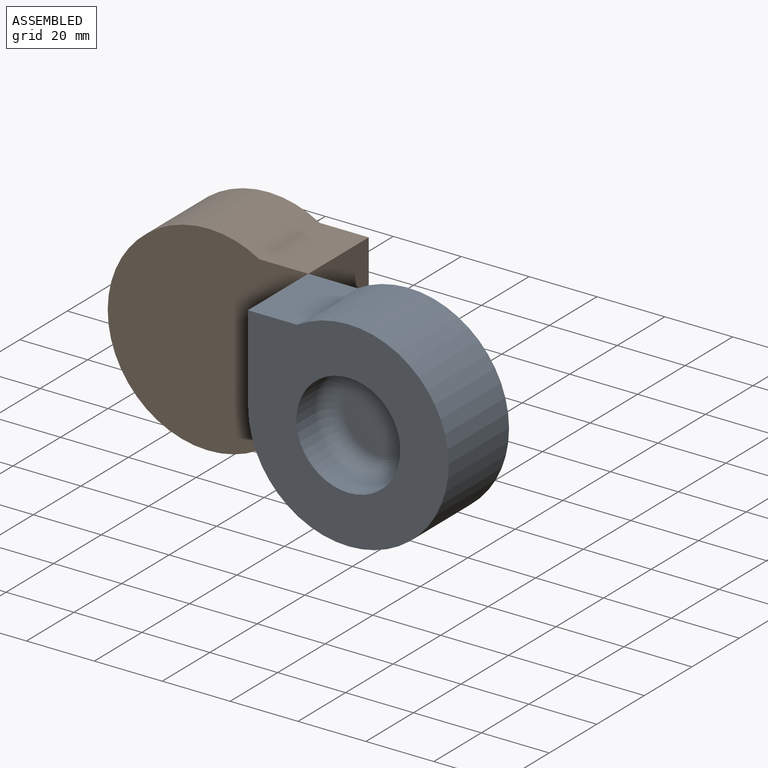
[diagram: assembled view]
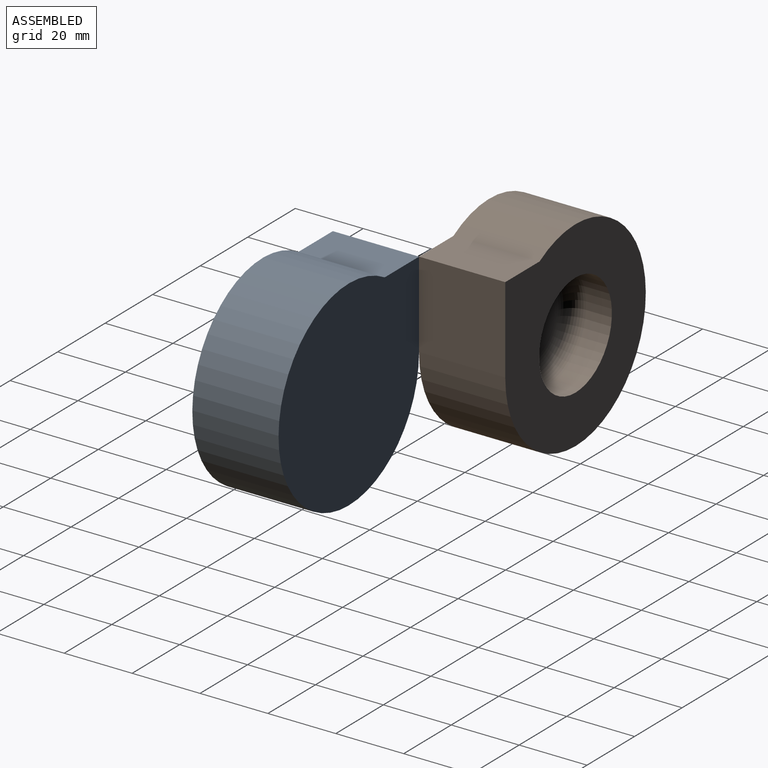
[diagram: assembled view, second angle]
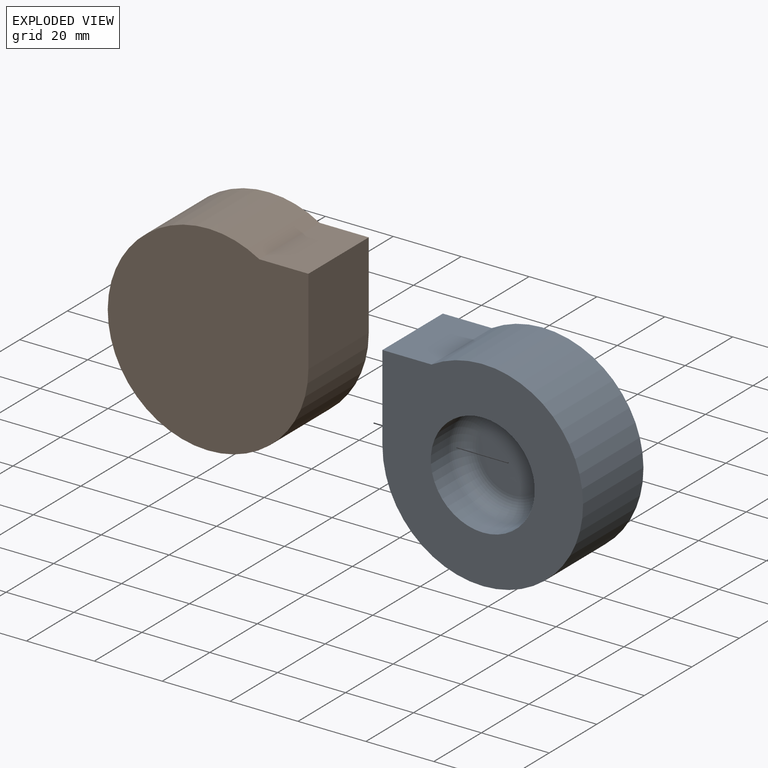
[diagram: exploded view]
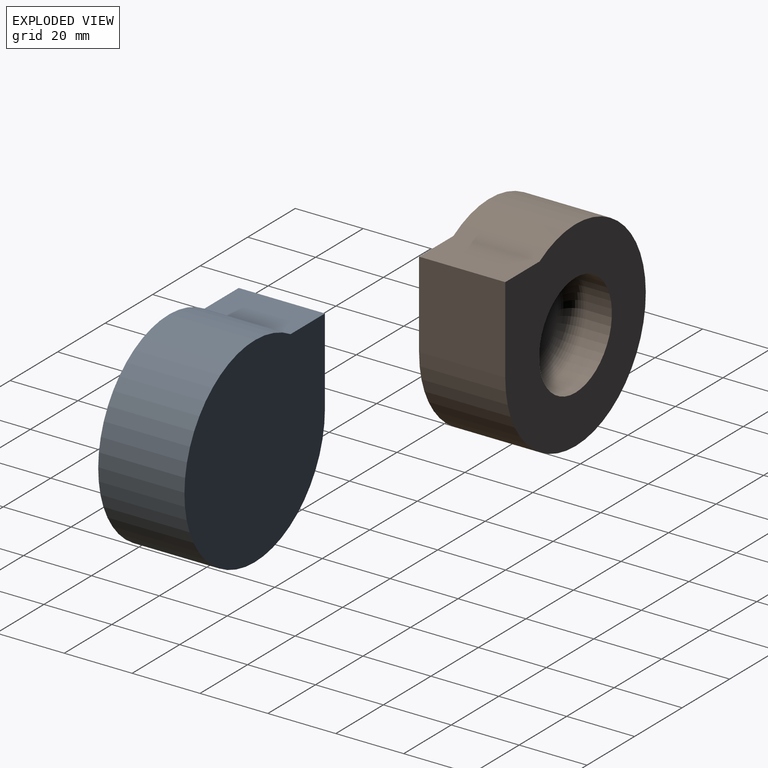
[diagram: exploded view, second angle]
ASSEMBLY  parts=2 mates=2
PART A: 8 faces, bbox 59.1x25.4x59.1 mm
  f0: plane 25.4x25.4mm, normal (-1,0,0), area 645.2mm2, adj f1,f2,f3,f4
  f1: cylinder r=29.56mm len=59.11mm, axis (0,1,0), area 3940.7mm2, adj f0,f2,f3,f4
  f2: plane 25.4x14.44mm, normal (0,0,1), area 366.8mm2, adj f0,f1,f3,f4
  f3: plane 59.11x59.11mm, normal (0,-1,0), area 2115mm2, adj f0,f1,f2,f5
  f4: plane 59.11x59.11mm, normal (0,1,0), area 2851.6mm2, adj f0,f1,f2
  f5: cylinder r=15.31mm len=30.62mm, axis (0,-1,0), area 733.1mm2, adj f3,f7
  f6: plane 20.46x20.46mm, normal (0,-1,0), area 328.9mm2, adj f7
  f7: torus R=10.23mm, axis (0,-1,0), area 675.2mm2, adj f5,f6
PART B: same geometry as A
PLACE A t=(-24.75,-29.51,-17.35)mm
PLACE B rot(axis=(0,0,1),180deg) t=(-83.86,-29.51,-17.35)mm
MATE parallel B.f4 <-> A.f4  axis (0,-1,0) through (-82.91,-29.51,-16.62)mm
MATE planar B.f0 <-> A.f0  axis (1,0,0) through (-54.31,-16.81,-4.65)mm
